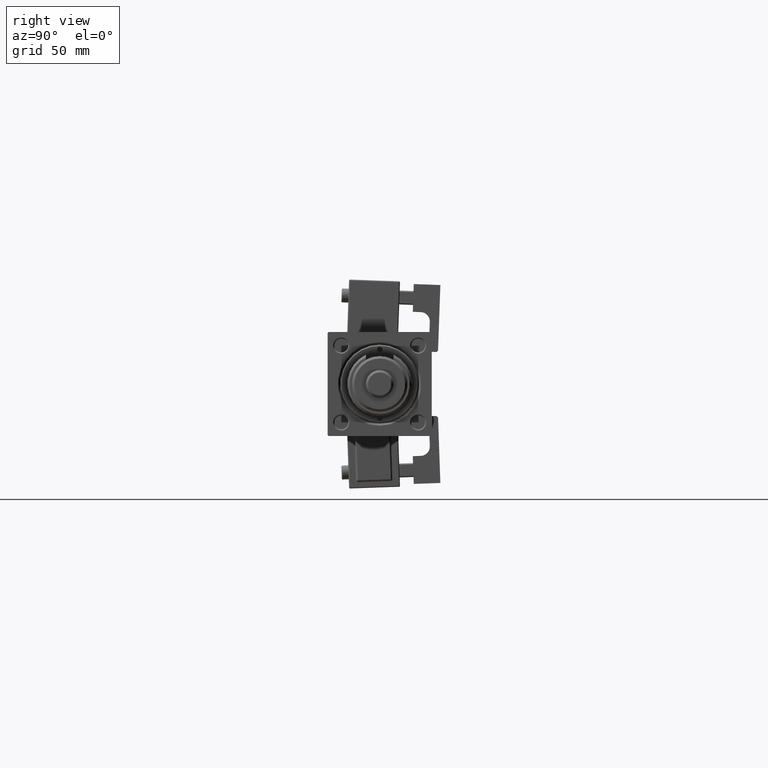
[diagram: clean part render]
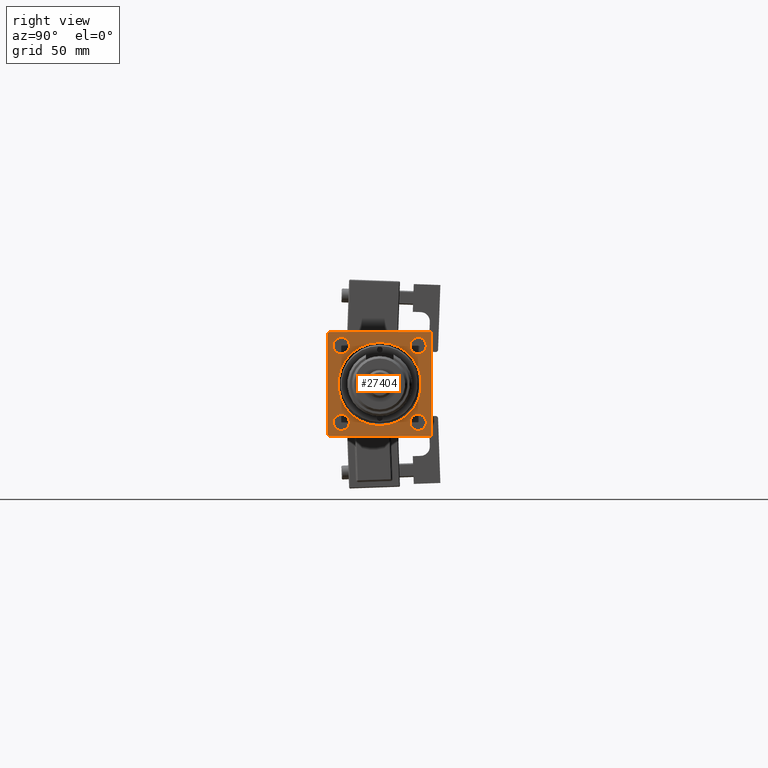
[diagram: same view with one face highlighted and labeled with its STEP entity id]
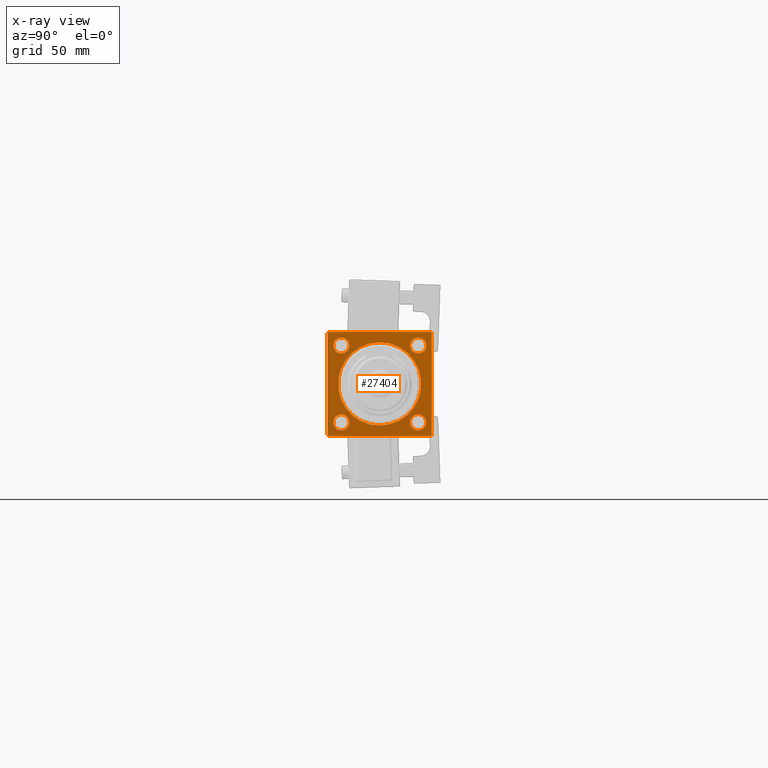
[diagram: x-ray of the same camera — body ghosted, the highlighted face saturated]
A machine part, right view. The second image highlights one B-rep face of the part: STEP entity #27404.
The next image is the same camera in x-ray: the body ghosted, the highlighted face saturated — about 0% of this face is hidden behind the body in this view.
In plain terms, the highlighted planar face has unit normal (-1, 0, 0).
Its self-contained STEP definition (entity closure, byte-faithful):
#349 = EDGE_CURVE ( 'NONE', #34694, #44008, #20976, .T. ) ;
#833 = EDGE_LOOP ( 'NONE', ( #38272, #3344, #38216, #2939, #14891, #11005, #53172, #20763 ) ) ;
#997 = DIRECTION ( 'NONE',  ( 0.000000000000000000, 0.7071067811865426878, -0.7071067811865524577 ) ) ;
#1392 = VERTEX_POINT ( 'NONE', #44202 ) ;
#1613 = AXIS2_PLACEMENT_3D ( 'NONE', #11298, #41274, #2892 ) ;
#1724 = DIRECTION ( 'NONE',  ( -1.000000000000000000, 0.000000000000000000, -0.000000000000000000 ) ) ;
#1904 = DIRECTION ( 'NONE',  ( 0.000000000000000000, 0.000000000000000000, 1.000000000000000000 ) ) ;
#1947 = ORIENTED_EDGE ( 'NONE', *, *, #28874, .T. ) ;
#2211 = AXIS2_PLACEMENT_3D ( 'NONE', #47522, #9136, #4105 ) ;
#2345 = VERTEX_POINT ( 'NONE', #14513 ) ;
#2602 = CARTESIAN_POINT ( 'NONE',  ( 203.0000000000000000, 22.50000000000000355, 22.50000000000000355 ) ) ;
#2892 = DIRECTION ( 'NONE',  ( 0.000000000000000000, 0.000000000000000000, 1.000000000000000000 ) ) ;
#2939 = ORIENTED_EDGE ( 'NONE', *, *, #47490, .T. ) ;
#3299 = DIRECTION ( 'NONE',  ( 0.000000000000000000, 0.000000000000000000, 1.000000000000000000 ) ) ;
#3313 = CARTESIAN_POINT ( 'NONE',  ( 203.0000000000000000, -16.59999999999999787, 16.59999999999999787 ) ) ;
#3344 = ORIENTED_EDGE ( 'NONE', *, *, #18721, .T. ) ;
#4105 = DIRECTION ( 'NONE',  ( 0.000000000000000000, 0.000000000000000000, 1.000000000000000000 ) ) ;
#5295 = CIRCLE ( 'NONE', #20501, 17.99999999999998934 ) ;
#5973 = AXIS2_PLACEMENT_3D ( 'NONE', #15969, #12877, #25217 ) ;
#7357 = CARTESIAN_POINT ( 'NONE',  ( 203.0000000000000000, 22.50000000000000355, 22.50000000000000355 ) ) ;
#7601 = CARTESIAN_POINT ( 'NONE',  ( 203.0000000000000000, -22.49999999999999645, 22.49999999999999289 ) ) ;
#7700 = EDGE_CURVE ( 'NONE', #1392, #12480, #25802, .T. ) ;
#7978 = FACE_BOUND ( 'NONE', #13891, .T. ) ;
#8355 = DIRECTION ( 'NONE',  ( 0.000000000000000000, -0.7071067811865474617, 0.7071067811865474617 ) ) ;
#8710 = ORIENTED_EDGE ( 'NONE', *, *, #7700, .T. ) ;
#9136 = DIRECTION ( 'NONE',  ( -1.000000000000000000, 0.000000000000000000, -0.000000000000000000 ) ) ;
#9171 = DIRECTION ( 'NONE',  ( 0.000000000000000000, 0.000000000000000000, 1.000000000000000000 ) ) ;
#10663 = DIRECTION ( 'NONE',  ( -0.000000000000000000, 0.7071067811865474617, 0.7071067811865474617 ) ) ;
#11005 = ORIENTED_EDGE ( 'NONE', *, *, #349, .T. ) ;
#11118 = CARTESIAN_POINT ( 'NONE',  ( 203.0000000000000000, -22.49999999999999645, 21.99999999999999289 ) ) ;
#11298 = CARTESIAN_POINT ( 'NONE',  ( 203.0000000000000000, 16.59999999999999787, -16.60000000000000497 ) ) ;
#11324 = CARTESIAN_POINT ( 'NONE',  ( 203.0000000000000000, 0.000000000000000000, 0.000000000000000000 ) ) ;
#11798 = CIRCLE ( 'NONE', #52027, 17.99999999999998934 ) ;
#11935 = EDGE_CURVE ( 'NONE', #12554, #52963, #38407, .T. ) ;
#12201 = VECTOR ( 'NONE', #8355, 1000.000000000000114 ) ;
#12451 = DIRECTION ( 'NONE',  ( -1.000000000000000000, 0.000000000000000000, -0.000000000000000000 ) ) ;
#12480 = VERTEX_POINT ( 'NONE', #26840 ) ;
#12554 = VERTEX_POINT ( 'NONE', #11118 ) ;
#12555 = CARTESIAN_POINT ( 'NONE',  ( 203.0000000000000000, 22.00000000000000355, 22.50000000000000355 ) ) ;
#12725 = FACE_BOUND ( 'NONE', #25338, .T. ) ;
#12877 = DIRECTION ( 'NONE',  ( -1.000000000000000000, 0.000000000000000000, -0.000000000000000000 ) ) ;
#13614 = LINE ( 'NONE', #39378, #16005 ) ;
#13773 = CARTESIAN_POINT ( 'NONE',  ( 203.0000000000000000, 22.50000000000000355, 22.00000000000000355 ) ) ;
#13836 = EDGE_CURVE ( 'NONE', #47300, #41682, #34561, .T. ) ;
#13888 = VERTEX_POINT ( 'NONE', #38501 ) ;
#13891 = EDGE_LOOP ( 'NONE', ( #33414, #1947 ) ) ;
#14254 = DIRECTION ( 'NONE',  ( -1.000000000000000000, 0.000000000000000000, -0.000000000000000000 ) ) ;
#14343 = CARTESIAN_POINT ( 'NONE',  ( 203.0000000000000000, -16.60000000000000497, -13.10000000000000142 ) ) ;
#14513 = CARTESIAN_POINT ( 'NONE',  ( 203.0000000000000000, 2.204364238465234244E-15, 17.99999999999998934 ) ) ;
#14814 = VECTOR ( 'NONE', #54674, 1000.000000000000000 ) ;
#14891 = ORIENTED_EDGE ( 'NONE', *, *, #49064, .F. ) ;
#15030 = EDGE_CURVE ( 'NONE', #13888, #29599, #54287, .T. ) ;
#15855 = CIRCLE ( 'NONE', #29291, 3.500000000000003109 ) ;
#15969 = CARTESIAN_POINT ( 'NONE',  ( 203.0000000000000000, -16.59999999999999787, 16.59999999999999787 ) ) ;
#16005 = VECTOR ( 'NONE', #997, 1000.000000000000000 ) ;
#17404 = ORIENTED_EDGE ( 'NONE', *, *, #53933, .T. ) ;
#17488 = CARTESIAN_POINT ( 'NONE',  ( 203.0000000000000000, -22.49999999999999645, 21.99999999999999289 ) ) ;
#18721 = EDGE_CURVE ( 'NONE', #52963, #41682, #13614, .T. ) ;
#19355 = LINE ( 'NONE', #44568, #22860 ) ;
#19776 = DIRECTION ( 'NONE',  ( -1.000000000000000000, 0.000000000000000000, -0.000000000000000000 ) ) ;
#20010 = VERTEX_POINT ( 'NONE', #26530 ) ;
#20425 = DIRECTION ( 'NONE',  ( 0.000000000000000000, 0.000000000000000000, 1.000000000000000000 ) ) ;
#20501 = AXIS2_PLACEMENT_3D ( 'NONE', #11324, #54190, #24774 ) ;
#20763 = ORIENTED_EDGE ( 'NONE', *, *, #32866, .T. ) ;
#20817 = DIRECTION ( 'NONE',  ( -1.000000000000000000, 0.000000000000000000, -0.000000000000000000 ) ) ;
#20976 = LINE ( 'NONE', #12555, #12201 ) ;
#21149 = CARTESIAN_POINT ( 'NONE',  ( 203.0000000000000000, 22.00000000000000355, -22.49999999999999645 ) ) ;
#21921 = CARTESIAN_POINT ( 'NONE',  ( 203.0000000000000000, 16.59999999999999787, 20.10000000000000853 ) ) ;
#22131 = CARTESIAN_POINT ( 'NONE',  ( 203.0000000000000000, 0.000000000000000000, -17.99999999999998934 ) ) ;
#22248 = LINE ( 'NONE', #17488, #44155 ) ;
#22288 = EDGE_CURVE ( 'NONE', #50270, #2345, #5295, .T. ) ;
#22860 = VECTOR ( 'NONE', #10663, 1000.000000000000114 ) ;
#23024 = CARTESIAN_POINT ( 'NONE',  ( 203.0000000000000000, 16.59999999999999787, 16.60000000000000497 ) ) ;
#23212 = CARTESIAN_POINT ( 'NONE',  ( 203.0000000000000000, 16.59999999999999787, 16.60000000000000497 ) ) ;
#23904 = DIRECTION ( 'NONE',  ( 0.000000000000000000, -1.000000000000000000, -2.312964634635742957E-16 ) ) ;
#24774 = DIRECTION ( 'NONE',  ( 0.000000000000000000, 0.000000000000000000, 1.000000000000000000 ) ) ;
#25217 = DIRECTION ( 'NONE',  ( 0.000000000000000000, 0.000000000000000000, 1.000000000000000000 ) ) ;
#25338 = EDGE_LOOP ( 'NONE', ( #27753, #8710 ) ) ;
#25369 = VERTEX_POINT ( 'NONE', #14343 ) ;
#25802 = CIRCLE ( 'NONE', #34709, 3.500000000000003109 ) ;
#26089 = CIRCLE ( 'NONE', #38638, 3.500000000000003109 ) ;
#26530 = CARTESIAN_POINT ( 'NONE',  ( 203.0000000000000000, 16.59999999999999787, 13.10000000000000142 ) ) ;
#26840 = CARTESIAN_POINT ( 'NONE',  ( 203.0000000000000000, 16.59999999999999787, -20.10000000000000853 ) ) ;
#26957 = ORIENTED_EDGE ( 'NONE', *, *, #51205, .T. ) ;
#27047 = EDGE_LOOP ( 'NONE', ( #17404, #45536 ) ) ;
#27404 = ADVANCED_FACE ( 'NONE', ( #46354, #33736, #41590, #12725, #7978, #33187 ), #51112, .F. ) ;
#27753 = ORIENTED_EDGE ( 'NONE', *, *, #53478, .T. ) ;
#27984 = VECTOR ( 'NONE', #23904, 1000.000000000000000 ) ;
#28109 = EDGE_CURVE ( 'NONE', #20010, #49917, #26089, .T. ) ;
#28437 = CARTESIAN_POINT ( 'NONE',  ( 203.0000000000000000, -16.60000000000000497, -16.60000000000000497 ) ) ;
#28483 = AXIS2_PLACEMENT_3D ( 'NONE', #3313, #29640, #20425 ) ;
#28874 = EDGE_CURVE ( 'NONE', #2345, #50270, #11798, .T. ) ;
#29291 = AXIS2_PLACEMENT_3D ( 'NONE', #28437, #19776, #49189 ) ;
#29599 = VERTEX_POINT ( 'NONE', #50669 ) ;
#29640 = DIRECTION ( 'NONE',  ( -1.000000000000000000, 0.000000000000000000, -0.000000000000000000 ) ) ;
#29816 = DIRECTION ( 'NONE',  ( -0.000000000000000000, 0.000000000000000000, 1.000000000000000000 ) ) ;
#30644 = EDGE_LOOP ( 'NONE', ( #26957, #53239 ) ) ;
#31021 = DIRECTION ( 'NONE',  ( -1.000000000000000000, 0.000000000000000000, -0.000000000000000000 ) ) ;
#31138 = CIRCLE ( 'NONE', #42779, 3.500000000000003109 ) ;
#32866 = EDGE_CURVE ( 'NONE', #34104, #12554, #22248, .T. ) ;
#33187 = FACE_OUTER_BOUND ( 'NONE', #833, .T. ) ;
#33414 = ORIENTED_EDGE ( 'NONE', *, *, #22288, .T. ) ;
#33736 = FACE_BOUND ( 'NONE', #27047, .T. ) ;
#34104 = VERTEX_POINT ( 'NONE', #49050 ) ;
#34504 = EDGE_CURVE ( 'NONE', #44008, #34104, #52772, .T. ) ;
#34561 = LINE ( 'NONE', #43259, #41723 ) ;
#34694 = VERTEX_POINT ( 'NONE', #13773 ) ;
#34709 = AXIS2_PLACEMENT_3D ( 'NONE', #43958, #20817, #46294 ) ;
#36275 = ORIENTED_EDGE ( 'NONE', *, *, #52977, .T. ) ;
#37043 = LINE ( 'NONE', #7357, #47092 ) ;
#38216 = ORIENTED_EDGE ( 'NONE', *, *, #13836, .F. ) ;
#38272 = ORIENTED_EDGE ( 'NONE', *, *, #11935, .T. ) ;
#38407 = LINE ( 'NONE', #7601, #14814 ) ;
#38494 = CARTESIAN_POINT ( 'NONE',  ( 203.0000000000000000, 0.000000000000000000, 0.000000000000000000 ) ) ;
#38501 = CARTESIAN_POINT ( 'NONE',  ( 203.0000000000000000, -16.59999999999999787, 20.09999999999997300 ) ) ;
#38592 = AXIS2_PLACEMENT_3D ( 'NONE', #38494, #12451, #29816 ) ;
#38638 = AXIS2_PLACEMENT_3D ( 'NONE', #23212, #14254, #1904 ) ;
#38801 = EDGE_LOOP ( 'NONE', ( #39183, #36275 ) ) ;
#39183 = ORIENTED_EDGE ( 'NONE', *, *, #28109, .T. ) ;
#39378 = CARTESIAN_POINT ( 'NONE',  ( 203.0000000000000000, -21.99999999999996803, -22.50000000000000000 ) ) ;
#39591 = VERTEX_POINT ( 'NONE', #51012 ) ;
#41274 = DIRECTION ( 'NONE',  ( -1.000000000000000000, 0.000000000000000000, -0.000000000000000000 ) ) ;
#41590 = FACE_BOUND ( 'NONE', #30644, .T. ) ;
#41607 = CIRCLE ( 'NONE', #2211, 3.500000000000003109 ) ;
#41682 = VERTEX_POINT ( 'NONE', #48480 ) ;
#41723 = VECTOR ( 'NONE', #42713, 1000.000000000000000 ) ;
#42713 = DIRECTION ( 'NONE',  ( 0.000000000000000000, -1.000000000000000000, -7.709882115452476934E-17 ) ) ;
#42779 = AXIS2_PLACEMENT_3D ( 'NONE', #23024, #1724, #3299 ) ;
#42968 = VERTEX_POINT ( 'NONE', #48934 ) ;
#43259 = CARTESIAN_POINT ( 'NONE',  ( 203.0000000000000000, 22.50000000000000355, -22.49999999999999645 ) ) ;
#43261 = DIRECTION ( 'NONE',  ( -0.000000000000000000, -0.7071067811865474617, -0.7071067811865474617 ) ) ;
#43958 = CARTESIAN_POINT ( 'NONE',  ( 203.0000000000000000, 16.59999999999999787, -16.60000000000000497 ) ) ;
#44008 = VERTEX_POINT ( 'NONE', #52812 ) ;
#44028 = CARTESIAN_POINT ( 'NONE',  ( 203.0000000000000000, -22.49999999999999645, -21.99999999999995026 ) ) ;
#44155 = VECTOR ( 'NONE', #43261, 1000.000000000000114 ) ;
#44202 = CARTESIAN_POINT ( 'NONE',  ( 203.0000000000000000, 16.59999999999999787, -13.10000000000000142 ) ) ;
#44568 = CARTESIAN_POINT ( 'NONE',  ( 203.0000000000000000, 22.50000000000000355, -21.99999999999999645 ) ) ;
#45536 = ORIENTED_EDGE ( 'NONE', *, *, #15030, .T. ) ;
#46294 = DIRECTION ( 'NONE',  ( 0.000000000000000000, 0.000000000000000000, 1.000000000000000000 ) ) ;
#46354 = FACE_BOUND ( 'NONE', #38801, .T. ) ;
#47013 = EDGE_CURVE ( 'NONE', #25369, #39591, #41607, .T. ) ;
#47092 = VECTOR ( 'NONE', #53597, 1000.000000000000000 ) ;
#47300 = VERTEX_POINT ( 'NONE', #21149 ) ;
#47490 = EDGE_CURVE ( 'NONE', #47300, #42968, #19355, .T. ) ;
#47522 = CARTESIAN_POINT ( 'NONE',  ( 203.0000000000000000, -16.60000000000000497, -16.60000000000000497 ) ) ;
#48480 = CARTESIAN_POINT ( 'NONE',  ( 203.0000000000000000, -21.99999999999995381, -22.50000000000000000 ) ) ;
#48934 = CARTESIAN_POINT ( 'NONE',  ( 203.0000000000000000, 22.50000000000000355, -21.99999999999998224 ) ) ;
#49050 = CARTESIAN_POINT ( 'NONE',  ( 203.0000000000000000, -21.99999999999998224, 22.49999999999999289 ) ) ;
#49064 = EDGE_CURVE ( 'NONE', #34694, #42968, #37043, .T. ) ;
#49189 = DIRECTION ( 'NONE',  ( 0.000000000000000000, 0.000000000000000000, 1.000000000000000000 ) ) ;
#49917 = VERTEX_POINT ( 'NONE', #21921 ) ;
#50270 = VERTEX_POINT ( 'NONE', #22131 ) ;
#50669 = CARTESIAN_POINT ( 'NONE',  ( 203.0000000000000000, -16.59999999999999787, 13.10000000000002096 ) ) ;
#50897 = CIRCLE ( 'NONE', #28483, 3.499999999999975131 ) ;
#51012 = CARTESIAN_POINT ( 'NONE',  ( 203.0000000000000000, -16.60000000000000497, -20.10000000000000853 ) ) ;
#51112 = PLANE ( 'NONE',  #38592 ) ;
#51205 = EDGE_CURVE ( 'NONE', #39591, #25369, #15855, .T. ) ;
#52027 = AXIS2_PLACEMENT_3D ( 'NONE', #53893, #31021, #9171 ) ;
#52772 = LINE ( 'NONE', #2602, #27984 ) ;
#52812 = CARTESIAN_POINT ( 'NONE',  ( 203.0000000000000000, 22.00000000000000355, 22.50000000000000355 ) ) ;
#52963 = VERTEX_POINT ( 'NONE', #44028 ) ;
#52977 = EDGE_CURVE ( 'NONE', #49917, #20010, #31138, .T. ) ;
#53172 = ORIENTED_EDGE ( 'NONE', *, *, #34504, .T. ) ;
#53239 = ORIENTED_EDGE ( 'NONE', *, *, #47013, .T. ) ;
#53478 = EDGE_CURVE ( 'NONE', #12480, #1392, #55303, .T. ) ;
#53597 = DIRECTION ( 'NONE',  ( 0.000000000000000000, 0.000000000000000000, -1.000000000000000000 ) ) ;
#53893 = CARTESIAN_POINT ( 'NONE',  ( 203.0000000000000000, 0.000000000000000000, 0.000000000000000000 ) ) ;
#53933 = EDGE_CURVE ( 'NONE', #29599, #13888, #50897, .T. ) ;
#54190 = DIRECTION ( 'NONE',  ( -1.000000000000000000, 0.000000000000000000, -0.000000000000000000 ) ) ;
#54287 = CIRCLE ( 'NONE', #5973, 3.499999999999975131 ) ;
#54674 = DIRECTION ( 'NONE',  ( 0.000000000000000000, 0.000000000000000000, -1.000000000000000000 ) ) ;
#55303 = CIRCLE ( 'NONE', #1613, 3.500000000000003109 ) ;